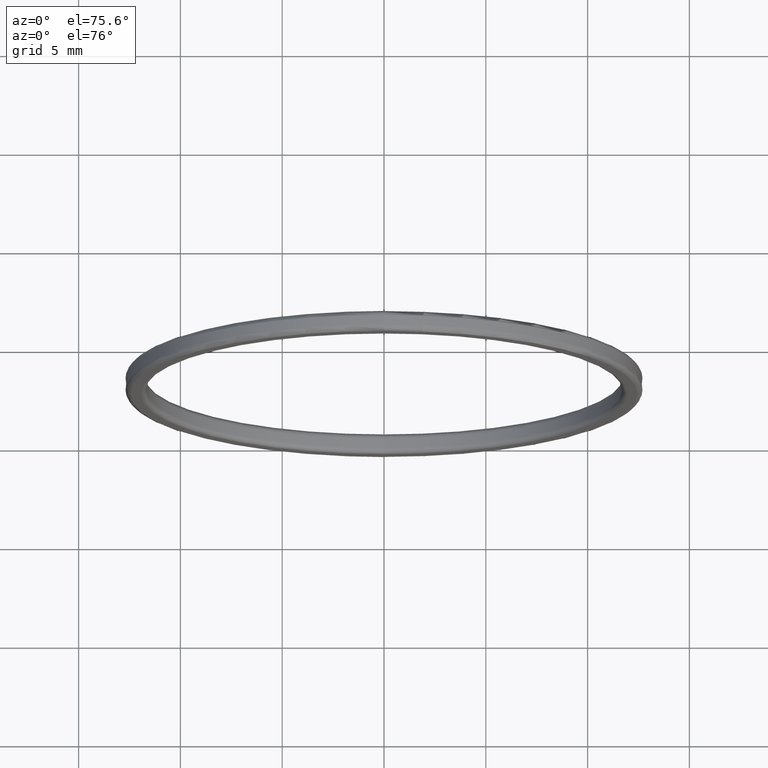
[diagram: clean part render]
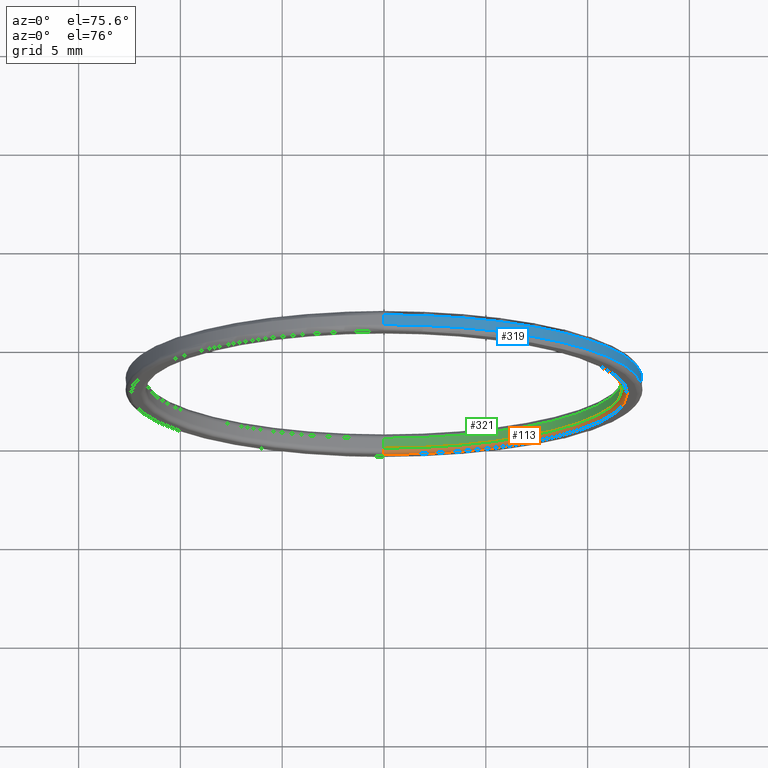
[diagram: same view with three faces highlighted in distinct colors, each labeled with its STEP entity id]
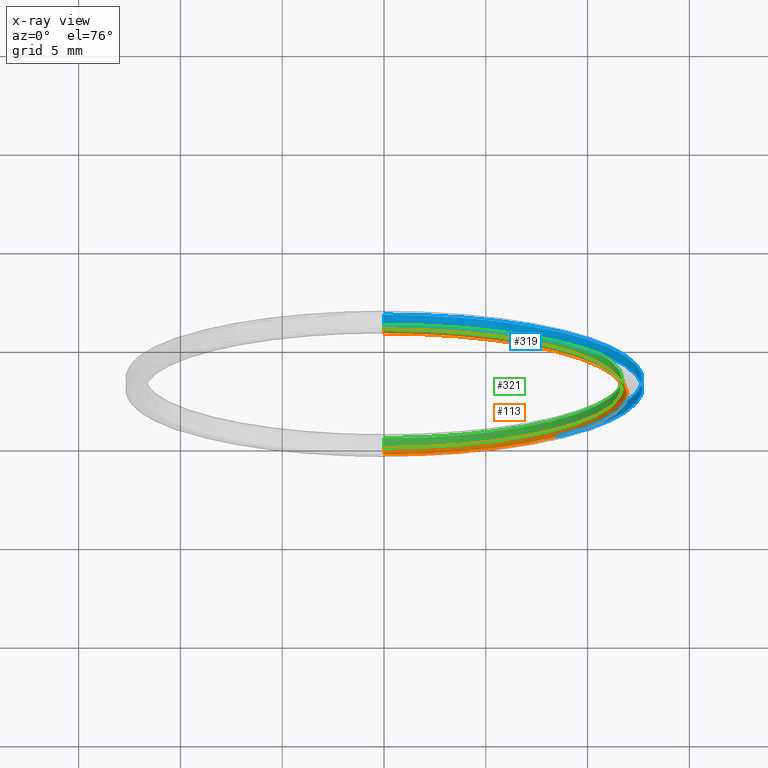
[diagram: x-ray of the same camera — body ghosted, the three highlighted faces saturated]
A machine part, auxiliary view with three faces highlighted in distinct colors.
The next image is the same camera in x-ray (body ghosted, the three faces saturated) — at least one of them is partly hidden behind the body in this view.
Their STEP definitions:

[orange] entity #113 — the highlighted toroidal blend (fillet) surface has major radius 11.95 mm and minor (blend) radius 0.25 mm.
#25 = CARTESIAN_POINT ( 'NONE',  ( 0.0000000000000000000, -0.2500000000000011102, 11.94999999999999929 ) ) ;
#32 = CIRCLE ( 'NONE', #373, 11.94999999999999929 ) ;
#34 = AXIS2_PLACEMENT_3D ( 'NONE', #139, #317, #392 ) ;
#37 = TOROIDAL_SURFACE ( 'NONE', #84, 11.94999999999999929, 0.2500000000000000000 ) ;
#65 = DIRECTION ( 'NONE',  ( 1.224646799147349509E-16, 0.0000000000000000000, -1.000000000000000000 ) ) ;
#84 = AXIS2_PLACEMENT_3D ( 'NONE', #235, #127, #198 ) ;
#92 = DIRECTION ( 'NONE',  ( 0.0000000000000000000, 0.0000000000000000000, 1.000000000000000000 ) ) ;
#94 = CIRCLE ( 'NONE', #453, 0.2500000000000002220 ) ;
#107 = EDGE_CURVE ( 'NONE', #251, #123, #94, .T. ) ;
#113 = ADVANCED_FACE ( 'NONE', ( #130 ), #37, .T. ) ;
#123 = VERTEX_POINT ( 'NONE', #265 ) ;
#124 = CARTESIAN_POINT ( 'NONE',  ( 1.463452924981086874E-15, -0.2500000000000011102, -11.94999999999999929 ) ) ;
#127 = DIRECTION ( 'NONE',  ( -0.0000000000000000000, 1.000000000000000000, -0.0000000000000000000 ) ) ;
#130 = FACE_OUTER_BOUND ( 'NONE', #402, .T. ) ;
#132 = CARTESIAN_POINT ( 'NONE',  ( 0.0000000000000000000, -0.2500000000000011102, 11.69999999999999929 ) ) ;
#139 = CARTESIAN_POINT ( 'NONE',  ( 0.0000000000000000000, -0.2500000000000011102, 0.0000000000000000000 ) ) ;
#140 = ORIENTED_EDGE ( 'NONE', *, *, #107, .F. ) ;
#155 = VERTEX_POINT ( 'NONE', #300 ) ;
#162 = DIRECTION ( 'NONE',  ( 0.0000000000000000000, 0.0000000000000000000, 1.000000000000000000 ) ) ;
#195 = EDGE_CURVE ( 'NONE', #449, #155, #419, .T. ) ;
#198 = DIRECTION ( 'NONE',  ( 0.0000000000000000000, 0.0000000000000000000, 1.000000000000000000 ) ) ;
#235 = CARTESIAN_POINT ( 'NONE',  ( 0.0000000000000000000, -0.2500000000000011102, 0.0000000000000000000 ) ) ;
#245 = CIRCLE ( 'NONE', #34, 11.69999999999999929 ) ;
#251 = VERTEX_POINT ( 'NONE', #132 ) ;
#260 = CARTESIAN_POINT ( 'NONE',  ( 1.432836755002403087E-15, -0.2500000000000011102, -11.69999999999999929 ) ) ;
#262 = EDGE_CURVE ( 'NONE', #123, #155, #32, .T. ) ;
#265 = CARTESIAN_POINT ( 'NONE',  ( 0.0000000000000000000, -0.5000000000000013323, 11.94999999999999929 ) ) ;
#267 = EDGE_CURVE ( 'NONE', #449, #251, #245, .T. ) ;
#289 = ORIENTED_EDGE ( 'NONE', *, *, #195, .T. ) ;
#300 = CARTESIAN_POINT ( 'NONE',  ( 1.463452924981086874E-15, -0.5000000000000013323, -11.94999999999999929 ) ) ;
#317 = DIRECTION ( 'NONE',  ( 0.0000000000000000000, -1.000000000000000000, 0.0000000000000000000 ) ) ;
#365 = ORIENTED_EDGE ( 'NONE', *, *, #267, .F. ) ;
#373 = AXIS2_PLACEMENT_3D ( 'NONE', #386, #380, #92 ) ;
#376 = ORIENTED_EDGE ( 'NONE', *, *, #262, .F. ) ;
#377 = DIRECTION ( 'NONE',  ( -1.000000000000000000, 0.0000000000000000000, 0.0000000000000000000 ) ) ;
#380 = DIRECTION ( 'NONE',  ( -0.0000000000000000000, 1.000000000000000000, -0.0000000000000000000 ) ) ;
#386 = CARTESIAN_POINT ( 'NONE',  ( 0.0000000000000000000, -0.5000000000000015543, 0.0000000000000000000 ) ) ;
#392 = DIRECTION ( 'NONE',  ( 0.0000000000000000000, 0.0000000000000000000, 1.000000000000000000 ) ) ;
#393 = AXIS2_PLACEMENT_3D ( 'NONE', #124, #451, #65 ) ;
#402 = EDGE_LOOP ( 'NONE', ( #365, #289, #376, #140 ) ) ;
#419 = CIRCLE ( 'NONE', #393, 0.2500000000000002220 ) ;
#449 = VERTEX_POINT ( 'NONE', #260 ) ;
#451 = DIRECTION ( 'NONE',  ( 1.000000000000000000, 0.0000000000000000000, 1.224646799147353207E-16 ) ) ;
#453 = AXIS2_PLACEMENT_3D ( 'NONE', #25, #377, #162 ) ;

[blue] entity #319 — the highlighted cylindrical surface (partial cylindrical patch) has radius 12.7 mm, axis along (-0, 1, -0).
#10 = CARTESIAN_POINT ( 'NONE',  ( 0.0000000000000000000, -0.2500000000000011102, 12.69999999999999929 ) ) ;
#11 = DIRECTION ( 'NONE',  ( 0.0000000000000000000, 0.0000000000000000000, 1.000000000000000000 ) ) ;
#23 = CARTESIAN_POINT ( 'NONE',  ( 0.0000000000000000000, 0.2499999999999985012, 12.69999999999999929 ) ) ;
#33 = VERTEX_POINT ( 'NONE', #10 ) ;
#36 = CARTESIAN_POINT ( 'NONE',  ( 1.555301434917138433E-15, 4.847222222222231203, -12.69999999999999929 ) ) ;
#50 = CIRCLE ( 'NONE', #53, 12.69999999999999929 ) ;
#53 = AXIS2_PLACEMENT_3D ( 'NONE', #437, #362, #11 ) ;
#89 = ORIENTED_EDGE ( 'NONE', *, *, #435, .T. ) ;
#110 = VERTEX_POINT ( 'NONE', #23 ) ;
#148 = VECTOR ( 'NONE', #324, 1000.000000000000000 ) ;
#157 = CARTESIAN_POINT ( 'NONE',  ( 0.0000000000000000000, 4.847222222222231203, 12.69999999999999929 ) ) ;
#159 = VERTEX_POINT ( 'NONE', #237 ) ;
#170 = FACE_OUTER_BOUND ( 'NONE', #448, .T. ) ;
#183 = ORIENTED_EDGE ( 'NONE', *, *, #410, .T. ) ;
#197 = LINE ( 'NONE', #157, #432 ) ;
#200 = AXIS2_PLACEMENT_3D ( 'NONE', #357, #389, #424 ) ;
#205 = EDGE_CURVE ( 'NONE', #33, #110, #197, .T. ) ;
#228 = ORIENTED_EDGE ( 'NONE', *, *, #205, .F. ) ;
#237 = CARTESIAN_POINT ( 'NONE',  ( 1.555301434917138433E-15, -0.2500000000000011102, -12.69999999999999929 ) ) ;
#271 = CIRCLE ( 'NONE', #445, 12.69999999999999929 ) ;
#284 = CARTESIAN_POINT ( 'NONE',  ( 1.555301434917138433E-15, 0.2499999999999985012, -12.69999999999999929 ) ) ;
#291 = CARTESIAN_POINT ( 'NONE',  ( 0.0000000000000000000, 0.2499999999999985012, 0.0000000000000000000 ) ) ;
#304 = DIRECTION ( 'NONE',  ( -0.0000000000000000000, 1.000000000000000000, -0.0000000000000000000 ) ) ;
#319 = ADVANCED_FACE ( 'NONE', ( #170 ), #408, .T. ) ;
#324 = DIRECTION ( 'NONE',  ( -0.0000000000000000000, 1.000000000000000000, -0.0000000000000000000 ) ) ;
#351 = DIRECTION ( 'NONE',  ( 0.0000000000000000000, -1.000000000000000000, 0.0000000000000000000 ) ) ;
#357 = CARTESIAN_POINT ( 'NONE',  ( 0.0000000000000000000, 4.847222222222231203, 0.0000000000000000000 ) ) ;
#362 = DIRECTION ( 'NONE',  ( -0.0000000000000000000, 1.000000000000000000, -0.0000000000000000000 ) ) ;
#363 = EDGE_CURVE ( 'NONE', #159, #433, #387, .T. ) ;
#387 = LINE ( 'NONE', #36, #148 ) ;
#389 = DIRECTION ( 'NONE',  ( -0.0000000000000000000, 1.000000000000000000, -0.0000000000000000000 ) ) ;
#408 = CYLINDRICAL_SURFACE ( 'NONE', #200, 12.69999999999999929 ) ;
#410 = EDGE_CURVE ( 'NONE', #433, #110, #271, .T. ) ;
#420 = ORIENTED_EDGE ( 'NONE', *, *, #363, .T. ) ;
#424 = DIRECTION ( 'NONE',  ( 0.0000000000000000000, 0.0000000000000000000, 1.000000000000000000 ) ) ;
#432 = VECTOR ( 'NONE', #304, 1000.000000000000000 ) ;
#433 = VERTEX_POINT ( 'NONE', #284 ) ;
#435 = EDGE_CURVE ( 'NONE', #33, #159, #50, .T. ) ;
#437 = CARTESIAN_POINT ( 'NONE',  ( 0.0000000000000000000, -0.2500000000000011102, 0.0000000000000000000 ) ) ;
#445 = AXIS2_PLACEMENT_3D ( 'NONE', #291, #351, #456 ) ;
#448 = EDGE_LOOP ( 'NONE', ( #89, #420, #183, #228 ) ) ;
#456 = DIRECTION ( 'NONE',  ( 0.0000000000000000000, 0.0000000000000000000, -1.000000000000000000 ) ) ;

[green] entity #321 — the highlighted cylindrical surface (partial cylindrical patch) has radius 11.7 mm, axis along (-0, 1, -0).
#3 = DIRECTION ( 'NONE',  ( 0.0000000000000000000, 0.0000000000000000000, 1.000000000000000000 ) ) ;
#9 = VERTEX_POINT ( 'NONE', #224 ) ;
#13 = DIRECTION ( 'NONE',  ( -0.0000000000000000000, 1.000000000000000000, -0.0000000000000000000 ) ) ;
#22 = LINE ( 'NONE', #215, #425 ) ;
#34 = AXIS2_PLACEMENT_3D ( 'NONE', #139, #317, #392 ) ;
#38 = ORIENTED_EDGE ( 'NONE', *, *, #97, .F. ) ;
#40 = EDGE_CURVE ( 'NONE', #251, #177, #22, .T. ) ;
#51 = ORIENTED_EDGE ( 'NONE', *, *, #267, .T. ) ;
#55 = ORIENTED_EDGE ( 'NONE', *, *, #422, .T. ) ;
#97 = EDGE_CURVE ( 'NONE', #449, #9, #406, .T. ) ;
#108 = CARTESIAN_POINT ( 'NONE',  ( 0.0000000000000000000, 4.847222222222231203, 0.0000000000000000000 ) ) ;
#118 = DIRECTION ( 'NONE',  ( -0.0000000000000000000, 1.000000000000000000, -0.0000000000000000000 ) ) ;
#132 = CARTESIAN_POINT ( 'NONE',  ( 0.0000000000000000000, -0.2500000000000011102, 11.69999999999999929 ) ) ;
#139 = CARTESIAN_POINT ( 'NONE',  ( 0.0000000000000000000, -0.2500000000000011102, 0.0000000000000000000 ) ) ;
#142 = DIRECTION ( 'NONE',  ( -0.0000000000000000000, 1.000000000000000000, -0.0000000000000000000 ) ) ;
#153 = CARTESIAN_POINT ( 'NONE',  ( 0.0000000000000000000, 0.2499999999999985012, 11.69999999999999929 ) ) ;
#156 = EDGE_LOOP ( 'NONE', ( #38, #51, #272, #55 ) ) ;
#163 = CYLINDRICAL_SURFACE ( 'NONE', #320, 11.69999999999999929 ) ;
#177 = VERTEX_POINT ( 'NONE', #153 ) ;
#182 = CIRCLE ( 'NONE', #225, 11.69999999999999929 ) ;
#215 = CARTESIAN_POINT ( 'NONE',  ( 0.0000000000000000000, 4.847222222222231203, 11.69999999999999929 ) ) ;
#224 = CARTESIAN_POINT ( 'NONE',  ( 1.432836755002403087E-15, 0.2499999999999985012, -11.69999999999999929 ) ) ;
#225 = AXIS2_PLACEMENT_3D ( 'NONE', #258, #118, #335 ) ;
#245 = CIRCLE ( 'NONE', #34, 11.69999999999999929 ) ;
#251 = VERTEX_POINT ( 'NONE', #132 ) ;
#258 = CARTESIAN_POINT ( 'NONE',  ( 0.0000000000000000000, 0.2499999999999985012, 0.0000000000000000000 ) ) ;
#260 = CARTESIAN_POINT ( 'NONE',  ( 1.432836755002403087E-15, -0.2500000000000011102, -11.69999999999999929 ) ) ;
#267 = EDGE_CURVE ( 'NONE', #449, #251, #245, .T. ) ;
#272 = ORIENTED_EDGE ( 'NONE', *, *, #40, .T. ) ;
#309 = VECTOR ( 'NONE', #411, 1000.000000000000000 ) ;
#317 = DIRECTION ( 'NONE',  ( 0.0000000000000000000, -1.000000000000000000, 0.0000000000000000000 ) ) ;
#320 = AXIS2_PLACEMENT_3D ( 'NONE', #108, #142, #3 ) ;
#321 = ADVANCED_FACE ( 'NONE', ( #323 ), #163, .F. ) ;
#323 = FACE_OUTER_BOUND ( 'NONE', #156, .T. ) ;
#335 = DIRECTION ( 'NONE',  ( 0.0000000000000000000, 0.0000000000000000000, -1.000000000000000000 ) ) ;
#374 = CARTESIAN_POINT ( 'NONE',  ( 1.432836755002403087E-15, 4.847222222222231203, -11.69999999999999929 ) ) ;
#392 = DIRECTION ( 'NONE',  ( 0.0000000000000000000, 0.0000000000000000000, 1.000000000000000000 ) ) ;
#406 = LINE ( 'NONE', #374, #309 ) ;
#411 = DIRECTION ( 'NONE',  ( -0.0000000000000000000, 1.000000000000000000, -0.0000000000000000000 ) ) ;
#422 = EDGE_CURVE ( 'NONE', #177, #9, #182, .T. ) ;
#425 = VECTOR ( 'NONE', #13, 1000.000000000000000 ) ;
#449 = VERTEX_POINT ( 'NONE', #260 ) ;